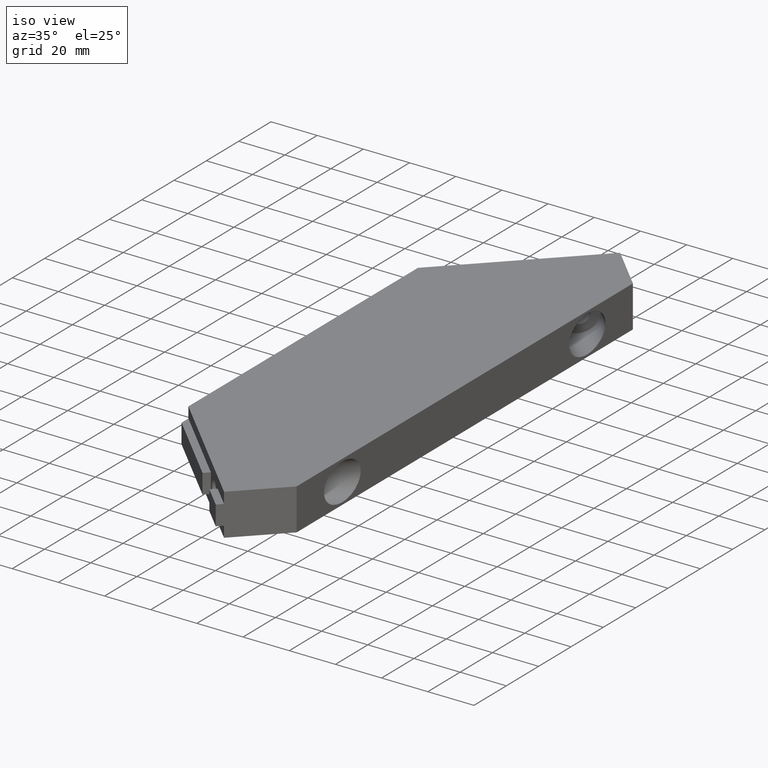
[diagram: clean part render]
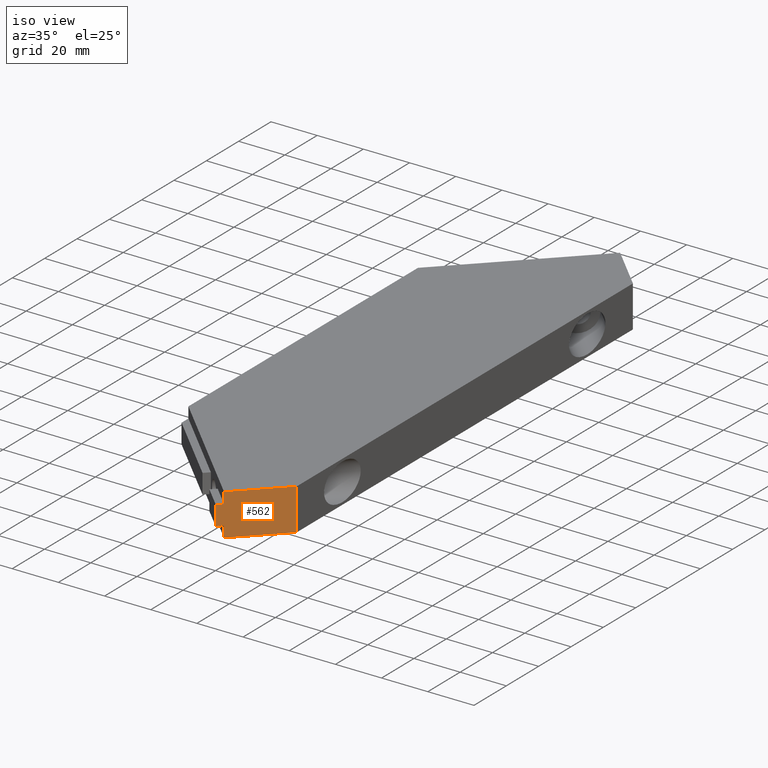
[diagram: same view with one face highlighted and labeled with its STEP entity id]
A machine part, iso view. The second image highlights one B-rep face of the part: STEP entity #562.
In plain terms, the highlighted planar face has unit normal (-0.7071, 0.7071, 0).
Its self-contained STEP definition (entity closure, byte-faithful):
#60=FACE_OUTER_BOUND('',#94,.T.);
#94=EDGE_LOOP('',(#493,#494,#495,#496,#497,#498,#499,#500));
#107=LINE('',#757,#173);
#129=LINE('',#809,#195);
#133=LINE('',#817,#199);
#137=LINE('',#824,#203);
#138=LINE('',#826,#204);
#169=LINE('',#889,#235);
#171=LINE('',#892,#237);
#172=LINE('',#894,#238);
#173=VECTOR('',#613,18.);
#195=VECTOR('',#645,4.75);
#199=VECTOR('',#649,4.75);
#203=VECTOR('',#657,26.1629509037973);
#204=VECTOR('',#660,26.1629509037973);
#235=VECTOR('',#723,8.5);
#237=VECTOR('',#727,2.99999951412147);
#238=VECTOR('',#730,2.99999951412147);
#239=VERTEX_POINT('',#755);
#240=VERTEX_POINT('',#756);
#264=VERTEX_POINT('',#806);
#265=VERTEX_POINT('',#808);
#268=VERTEX_POINT('',#814);
#269=VERTEX_POINT('',#816);
#285=VERTEX_POINT('',#886);
#286=VERTEX_POINT('',#888);
#291=EDGE_CURVE('',#239,#240,#107,.T.);
#316=EDGE_CURVE('',#265,#264,#129,.T.);
#320=EDGE_CURVE('',#269,#268,#133,.T.);
#325=EDGE_CURVE('',#269,#239,#137,.T.);
#326=EDGE_CURVE('',#264,#240,#138,.T.);
#357=EDGE_CURVE('',#285,#286,#169,.T.);
#359=EDGE_CURVE('',#285,#265,#171,.T.);
#360=EDGE_CURVE('',#286,#268,#172,.T.);
#493=ORIENTED_EDGE('',*,*,#325,.F.);
#494=ORIENTED_EDGE('',*,*,#320,.T.);
#495=ORIENTED_EDGE('',*,*,#360,.F.);
#496=ORIENTED_EDGE('',*,*,#357,.F.);
#497=ORIENTED_EDGE('',*,*,#359,.T.);
#498=ORIENTED_EDGE('',*,*,#316,.T.);
#499=ORIENTED_EDGE('',*,*,#326,.T.);
#500=ORIENTED_EDGE('',*,*,#291,.F.);
#536=PLANE('',#598);
#562=ADVANCED_FACE('',(#60),#536,.F.);
#598=AXIS2_PLACEMENT_3D('',#895,#731,#732);
#613=DIRECTION('',(0.,0.,-1.));
#645=DIRECTION('',(0.,0.,-1.));
#649=DIRECTION('',(0.,0.,-1.));
#657=DIRECTION('',(0.707106781186553,0.707106781186542,0.));
#660=DIRECTION('',(0.707106781186553,0.707106781186542,0.));
#723=DIRECTION('',(0.,0.,1.));
#727=DIRECTION('',(0.707106781186561,0.707106781186534,0.));
#730=DIRECTION('',(0.707106781186561,0.707106781186534,0.));
#731=DIRECTION('center_axis',(-0.707106781186542,0.707106781186553,0.));
#732=DIRECTION('ref_axis',(0.,0.,1.));
#755=CARTESIAN_POINT('',(69.9999999997199,-103.999999999584,18.));
#756=CARTESIAN_POINT('',(69.9999999997199,-103.999999999584,0.));
#757=CARTESIAN_POINT('',(69.9999999997199,-103.999999999584,18.));
#806=CARTESIAN_POINT('',(51.499999999794,-122.49999999951,0.));
#808=CARTESIAN_POINT('',(51.499999999794,-122.49999999951,4.75));
#809=CARTESIAN_POINT('',(51.499999999794,-122.49999999951,4.75));
#814=CARTESIAN_POINT('',(51.499999999794,-122.49999999951,13.25));
#816=CARTESIAN_POINT('',(51.499999999794,-122.49999999951,18.));
#817=CARTESIAN_POINT('',(51.499999999794,-122.49999999951,18.));
#824=CARTESIAN_POINT('',(51.499999999794,-122.49999999951,18.));
#826=CARTESIAN_POINT('',(51.499999999794,-122.49999999951,0.));
#886=CARTESIAN_POINT('',(49.3786799998023,-124.621319999502,4.75));
#888=CARTESIAN_POINT('',(49.3786799998023,-124.621319999502,13.25));
#889=CARTESIAN_POINT('',(49.3786799998023,-124.621319999502,4.75));
#892=CARTESIAN_POINT('',(49.3786799998023,-124.621319999502,4.75));
#894=CARTESIAN_POINT('',(49.3786799998023,-124.621319999502,13.25));
#895=CARTESIAN_POINT('Origin',(49.3786498547065,-124.621350144598,18.0000393701215));